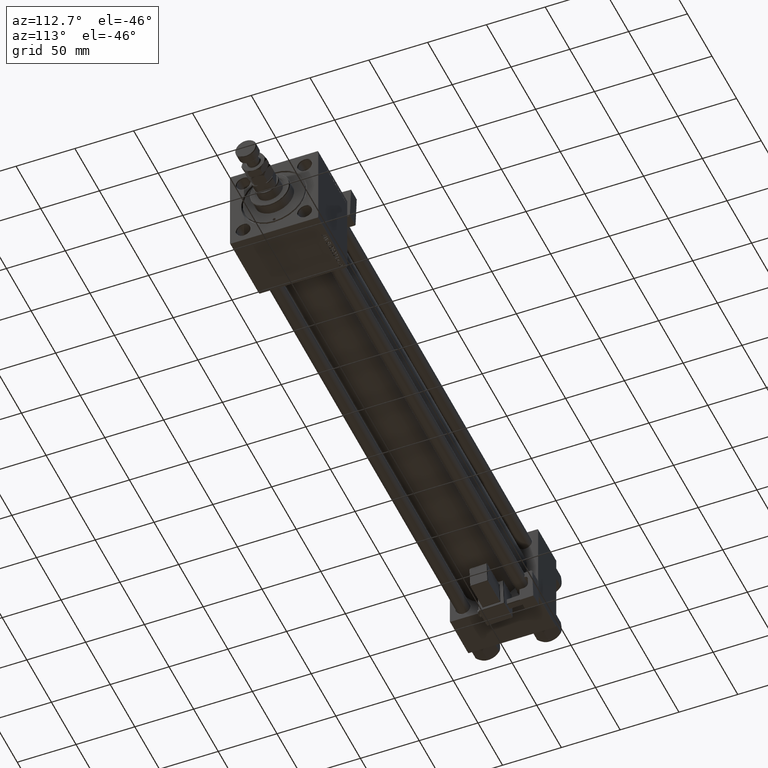
[diagram: clean part render]
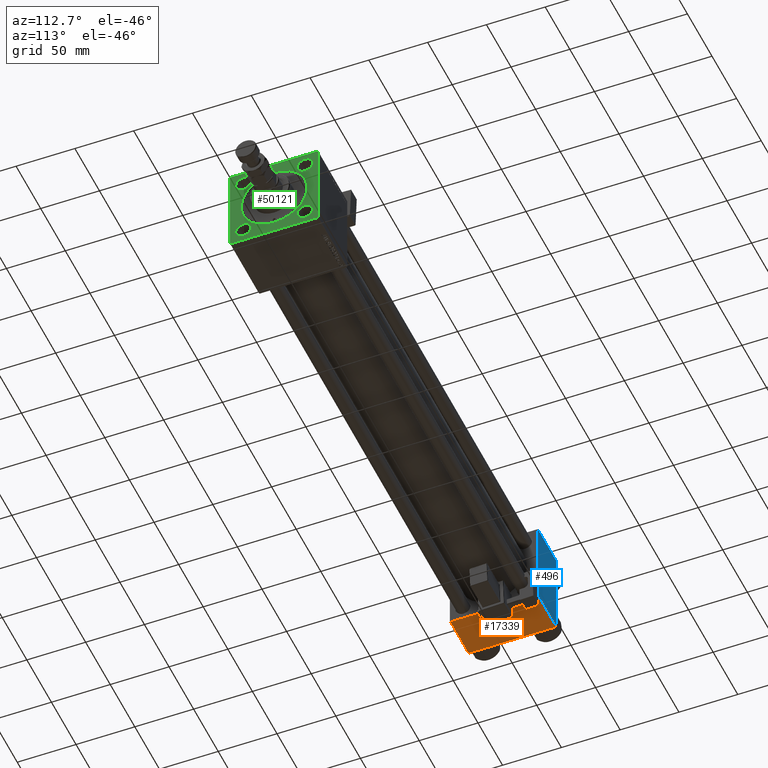
[diagram: same view with three faces highlighted in distinct colors, each labeled with its STEP entity id]
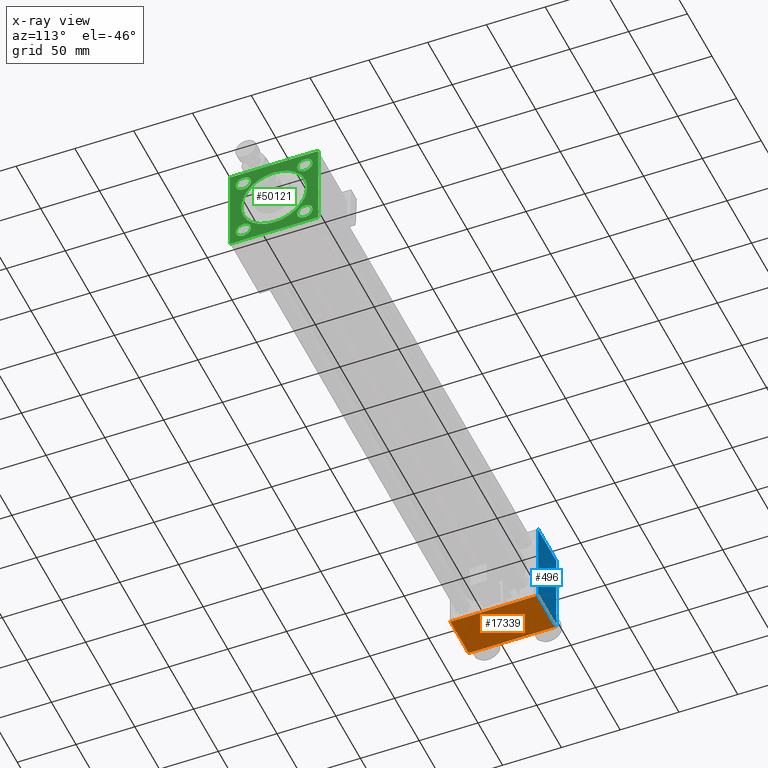
[diagram: x-ray of the same camera — body ghosted, the three highlighted faces saturated]
A machine part, auxiliary view with three faces highlighted in distinct colors.
The next image is the same camera in x-ray (body ghosted, the three faces saturated) — at least one of them is partly hidden behind the body in this view.
Their STEP definitions:

[orange] entity #17339 — the highlighted planar face has unit normal (0, 0, -1).
#242 = LINE ( 'NONE', #22148, #11803 ) ;
#1471 = AXIS2_PLACEMENT_3D ( 'NONE', #39291, #14876, #13794 ) ;
#4483 = VERTEX_POINT ( 'NONE', #25247 ) ;
#5553 = VERTEX_POINT ( 'NONE', #26611 ) ;
#11803 = VECTOR ( 'NONE', #38866, 1000.000000000000000 ) ;
#12409 = ORIENTED_EDGE ( 'NONE', *, *, #22195, .T. ) ;
#13794 = DIRECTION ( 'NONE',  ( 0.000000000000000000, 1.000000000000000000, 9.251858538542972814E-17 ) ) ;
#14311 = DIRECTION ( 'NONE',  ( 1.000000000000000000, 0.000000000000000000, 0.000000000000000000 ) ) ;
#14876 = DIRECTION ( 'NONE',  ( 0.000000000000000000, 9.251858538542972814E-17, -1.000000000000000000 ) ) ;
#14986 = EDGE_CURVE ( 'NONE', #4483, #38370, #242, .T. ) ;
#17339 = ADVANCED_FACE ( 'NONE', ( #27221 ), #51629, .T. ) ;
#20071 = CARTESIAN_POINT ( 'NONE',  ( 37.00000000000000000, -37.00000000000002132, -37.50000000000000711 ) ) ;
#22148 = CARTESIAN_POINT ( 'NONE',  ( 37.00000000000000000, 37.49999999999999289, -37.50000000000000000 ) ) ;
#22195 = EDGE_CURVE ( 'NONE', #5553, #4483, #43373, .T. ) ;
#25247 = CARTESIAN_POINT ( 'NONE',  ( 37.00000000000000000, 36.99999999999997868, -37.50000000000000000 ) ) ;
#26356 = VECTOR ( 'NONE', #14311, 1000.000000000000000 ) ;
#26611 = CARTESIAN_POINT ( 'NONE',  ( 0.000000000000000000, 36.99999999999997868, -37.50000000000000000 ) ) ;
#27221 = FACE_OUTER_BOUND ( 'NONE', #53770, .T. ) ;
#27466 = CARTESIAN_POINT ( 'NONE',  ( 37.00000000000000000, 36.99999999999997868, -37.50000000000000000 ) ) ;
#29500 = CARTESIAN_POINT ( 'NONE',  ( 0.000000000000000000, -37.00000000000002132, -37.50000000000000711 ) ) ;
#31613 = ORIENTED_EDGE ( 'NONE', *, *, #14986, .T. ) ;
#31905 = VECTOR ( 'NONE', #34287, 1000.000000000000000 ) ;
#32110 = EDGE_CURVE ( 'NONE', #5553, #46222, #33473, .T. ) ;
#33167 = ORIENTED_EDGE ( 'NONE', *, *, #35927, .T. ) ;
#33473 = LINE ( 'NONE', #50476, #31905 ) ;
#33738 = VECTOR ( 'NONE', #43103, 1000.000000000000000 ) ;
#33982 = ORIENTED_EDGE ( 'NONE', *, *, #32110, .F. ) ;
#34287 = DIRECTION ( 'NONE',  ( 0.000000000000000000, -1.000000000000000000, -9.251858538542972814E-17 ) ) ;
#35927 = EDGE_CURVE ( 'NONE', #38370, #46222, #49523, .T. ) ;
#38370 = VERTEX_POINT ( 'NONE', #20071 ) ;
#38866 = DIRECTION ( 'NONE',  ( 0.000000000000000000, -1.000000000000000000, -9.251858538542972814E-17 ) ) ;
#39291 = CARTESIAN_POINT ( 'NONE',  ( 37.00000000000000000, 37.49999999999999289, -37.50000000000000000 ) ) ;
#43103 = DIRECTION ( 'NONE',  ( -1.000000000000000000, 0.000000000000000000, 0.000000000000000000 ) ) ;
#43373 = LINE ( 'NONE', #27466, #26356 ) ;
#46222 = VERTEX_POINT ( 'NONE', #49724 ) ;
#49523 = LINE ( 'NONE', #29500, #33738 ) ;
#49724 = CARTESIAN_POINT ( 'NONE',  ( 0.000000000000000000, -37.00000000000002132, -37.50000000000000711 ) ) ;
#50476 = CARTESIAN_POINT ( 'NONE',  ( 0.000000000000000000, 37.49999999999999289, -37.50000000000000000 ) ) ;
#51629 = PLANE ( 'NONE',  #1471 ) ;
#53770 = EDGE_LOOP ( 'NONE', ( #33982, #12409, #31613, #33167 ) ) ;

[blue] entity #496 — the highlighted planar face has unit normal (0, 1, 0).
#496 = ADVANCED_FACE ( 'NONE', ( #44039 ), #6504, .T. ) ;
#1848 = CARTESIAN_POINT ( 'NONE',  ( 0.000000000000000000, 37.49999999999999289, 37.00000000000000000 ) ) ;
#2399 = DIRECTION ( 'NONE',  ( 0.000000000000000000, -0.000000000000000000, 1.000000000000000000 ) ) ;
#3756 = CARTESIAN_POINT ( 'NONE',  ( 37.00000000000000000, 37.49999999999999289, 37.00000000000000000 ) ) ;
#6262 = ORIENTED_EDGE ( 'NONE', *, *, #27633, .T. ) ;
#6504 = PLANE ( 'NONE',  #35941 ) ;
#9610 = DIRECTION ( 'NONE',  ( -1.000000000000000000, 0.000000000000000000, 0.000000000000000000 ) ) ;
#11274 = CARTESIAN_POINT ( 'NONE',  ( 37.00000000000000000, 37.49999999999999289, -36.99999999999998579 ) ) ;
#13522 = EDGE_CURVE ( 'NONE', #44966, #19688, #50749, .T. ) ;
#17569 = CARTESIAN_POINT ( 'NONE',  ( 37.00000000000000000, 37.49999999999999289, -36.99999999999998579 ) ) ;
#17621 = LINE ( 'NONE', #34356, #48331 ) ;
#19376 = DIRECTION ( 'NONE',  ( -0.000000000000000000, 1.000000000000000000, 0.000000000000000000 ) ) ;
#19688 = VERTEX_POINT ( 'NONE', #52331 ) ;
#23465 = EDGE_LOOP ( 'NONE', ( #23491, #37537, #23837, #6262 ) ) ;
#23491 = ORIENTED_EDGE ( 'NONE', *, *, #38417, .T. ) ;
#23837 = ORIENTED_EDGE ( 'NONE', *, *, #13522, .F. ) ;
#24719 = CARTESIAN_POINT ( 'NONE',  ( 37.00000000000000000, 37.49999999999999289, 37.50000000000000000 ) ) ;
#24955 = VERTEX_POINT ( 'NONE', #3756 ) ;
#27065 = CARTESIAN_POINT ( 'NONE',  ( 37.00000000000000000, 37.49999999999999289, 37.50000000000000000 ) ) ;
#27278 = VECTOR ( 'NONE', #9610, 1000.000000000000000 ) ;
#27633 = EDGE_CURVE ( 'NONE', #44966, #24955, #17621, .T. ) ;
#28824 = DIRECTION ( 'NONE',  ( 0.000000000000000000, 0.000000000000000000, -1.000000000000000000 ) ) ;
#29914 = CARTESIAN_POINT ( 'NONE',  ( 0.000000000000000000, 37.49999999999999289, 37.50000000000000000 ) ) ;
#33735 = VECTOR ( 'NONE', #45807, 1000.000000000000000 ) ;
#34356 = CARTESIAN_POINT ( 'NONE',  ( 37.00000000000000000, 37.49999999999999289, 37.00000000000000000 ) ) ;
#35941 = AXIS2_PLACEMENT_3D ( 'NONE', #27065, #19376, #2399 ) ;
#36217 = VERTEX_POINT ( 'NONE', #11274 ) ;
#37537 = ORIENTED_EDGE ( 'NONE', *, *, #47697, .T. ) ;
#38417 = EDGE_CURVE ( 'NONE', #24955, #36217, #45528, .T. ) ;
#44039 = FACE_OUTER_BOUND ( 'NONE', #23465, .T. ) ;
#44966 = VERTEX_POINT ( 'NONE', #1848 ) ;
#45528 = LINE ( 'NONE', #24719, #33735 ) ;
#45807 = DIRECTION ( 'NONE',  ( 0.000000000000000000, 0.000000000000000000, -1.000000000000000000 ) ) ;
#47435 = LINE ( 'NONE', #17569, #27278 ) ;
#47697 = EDGE_CURVE ( 'NONE', #36217, #19688, #47435, .T. ) ;
#48331 = VECTOR ( 'NONE', #51613, 1000.000000000000000 ) ;
#49435 = VECTOR ( 'NONE', #28824, 1000.000000000000000 ) ;
#50749 = LINE ( 'NONE', #29914, #49435 ) ;
#51613 = DIRECTION ( 'NONE',  ( 1.000000000000000000, 0.000000000000000000, 0.000000000000000000 ) ) ;
#52331 = CARTESIAN_POINT ( 'NONE',  ( 0.000000000000000000, 37.49999999999999289, -36.99999999999998579 ) ) ;

[green] entity #50121 — the highlighted planar face has unit normal (-1, 0, 0).
#22 = ORIENTED_EDGE ( 'NONE', *, *, #48133, .T. ) ;
#66 = VERTEX_POINT ( 'NONE', #36295 ) ;
#437 = CIRCLE ( 'NONE', #7434, 6.499999999999897859 ) ;
#1145 = EDGE_LOOP ( 'NONE', ( #40491, #21382 ) ) ;
#1366 = VECTOR ( 'NONE', #48937, 1000.000000000000000 ) ;
#1378 = LINE ( 'NONE', #35362, #42070 ) ;
#1413 = EDGE_CURVE ( 'NONE', #2666, #28731, #1378, .T. ) ;
#1474 = CARTESIAN_POINT ( 'NONE',  ( 484.0000000000000000, 37.50000000000000000, 37.49999999999999289 ) ) ;
#1579 = CARTESIAN_POINT ( 'NONE',  ( 484.0000000000000000, -37.50000000000000711, -37.00000000000000711 ) ) ;
#2027 = VERTEX_POINT ( 'NONE', #52970 ) ;
#2166 = CARTESIAN_POINT ( 'NONE',  ( 484.0000000000000000, -37.00000000000000000, 37.49999999999997868 ) ) ;
#2520 = CARTESIAN_POINT ( 'NONE',  ( 484.0000000000000000, -26.14999999999999147, 26.14999999999999503 ) ) ;
#2666 = VERTEX_POINT ( 'NONE', #25947 ) ;
#2778 = DIRECTION ( 'NONE',  ( 0.000000000000000000, 0.000000000000000000, 1.000000000000000000 ) ) ;
#3132 = EDGE_CURVE ( 'NONE', #25585, #11915, #18591, .T. ) ;
#3170 = LINE ( 'NONE', #12165, #1366 ) ;
#3567 = EDGE_LOOP ( 'NONE', ( #46979, #36105 ) ) ;
#3654 = VECTOR ( 'NONE', #52046, 1000.000000000000000 ) ;
#4266 = ORIENTED_EDGE ( 'NONE', *, *, #34398, .T. ) ;
#4374 = VERTEX_POINT ( 'NONE', #18163 ) ;
#4654 = VERTEX_POINT ( 'NONE', #7097 ) ;
#4855 = ORIENTED_EDGE ( 'NONE', *, *, #39265, .T. ) ;
#4941 = CIRCLE ( 'NONE', #9317, 28.00000000000002487 ) ;
#4992 = DIRECTION ( 'NONE',  ( 0.000000000000000000, 0.000000000000000000, 1.000000000000000000 ) ) ;
#5115 = DIRECTION ( 'NONE',  ( 0.000000000000000000, 0.000000000000000000, 1.000000000000000000 ) ) ;
#5543 = DIRECTION ( 'NONE',  ( -1.000000000000000000, -0.000000000000000000, 0.000000000000000000 ) ) ;
#6290 = EDGE_CURVE ( 'NONE', #27440, #4374, #23035, .T. ) ;
#6563 = EDGE_LOOP ( 'NONE', ( #20649, #29598 ) ) ;
#6754 = CARTESIAN_POINT ( 'NONE',  ( 484.0000000000000000, 37.00000000000000000, -37.50000000000000000 ) ) ;
#7097 = CARTESIAN_POINT ( 'NONE',  ( 484.0000000000000000, 26.14999999999999858, -19.65000000000010871 ) ) ;
#7282 = ORIENTED_EDGE ( 'NONE', *, *, #37352, .F. ) ;
#7434 = AXIS2_PLACEMENT_3D ( 'NONE', #45571, #7776, #16266 ) ;
#7609 = DIRECTION ( 'NONE',  ( -1.000000000000000000, -0.000000000000000000, 0.000000000000000000 ) ) ;
#7633 = AXIS2_PLACEMENT_3D ( 'NONE', #46185, #8636, #25363 ) ;
#7776 = DIRECTION ( 'NONE',  ( -1.000000000000000000, -0.000000000000000000, 0.000000000000000000 ) ) ;
#8186 = CIRCLE ( 'NONE', #45828, 6.499999999999897859 ) ;
#8413 = ORIENTED_EDGE ( 'NONE', *, *, #46291, .F. ) ;
#8490 = FACE_BOUND ( 'NONE', #1145, .T. ) ;
#8579 = CARTESIAN_POINT ( 'NONE',  ( 484.0000000000000000, -26.15000000000000213, -19.65000000000010871 ) ) ;
#8636 = DIRECTION ( 'NONE',  ( -1.000000000000000000, -0.000000000000000000, 0.000000000000000000 ) ) ;
#9098 = VERTEX_POINT ( 'NONE', #2166 ) ;
#9166 = AXIS2_PLACEMENT_3D ( 'NONE', #42250, #26627, #4992 ) ;
#9185 = EDGE_CURVE ( 'NONE', #2027, #20235, #14246, .T. ) ;
#9317 = AXIS2_PLACEMENT_3D ( 'NONE', #12156, #16823, #49468 ) ;
#9814 = CIRCLE ( 'NONE', #41314, 6.499999999999897859 ) ;
#9913 = CARTESIAN_POINT ( 'NONE',  ( 484.0000000000000000, 26.14999999999999858, -26.15000000000000213 ) ) ;
#9933 = LINE ( 'NONE', #38726, #15303 ) ;
#10163 = VERTEX_POINT ( 'NONE', #36354 ) ;
#10585 = EDGE_CURVE ( 'NONE', #4654, #38412, #8186, .T. ) ;
#11516 = VERTEX_POINT ( 'NONE', #24617 ) ;
#11915 = VERTEX_POINT ( 'NONE', #1579 ) ;
#12150 = ORIENTED_EDGE ( 'NONE', *, *, #54206, .T. ) ;
#12156 = CARTESIAN_POINT ( 'NONE',  ( 484.0000000000000000, 0.000000000000000000, 0.000000000000000000 ) ) ;
#12165 = CARTESIAN_POINT ( 'NONE',  ( 484.0000000000000000, -37.50000000000000000, 36.99999999999992184 ) ) ;
#12500 = AXIS2_PLACEMENT_3D ( 'NONE', #12861, #46575, #42992 ) ;
#12584 = FACE_BOUND ( 'NONE', #3567, .T. ) ;
#12861 = CARTESIAN_POINT ( 'NONE',  ( 484.0000000000000000, 0.000000000000000000, 0.000000000000000000 ) ) ;
#13053 = ORIENTED_EDGE ( 'NONE', *, *, #3132, .T. ) ;
#14246 = CIRCLE ( 'NONE', #30030, 6.499999999999897859 ) ;
#14791 = EDGE_CURVE ( 'NONE', #50770, #66, #50268, .T. ) ;
#15303 = VECTOR ( 'NONE', #17899, 1000.000000000000000 ) ;
#15729 = LINE ( 'NONE', #32454, #26176 ) ;
#15920 = EDGE_CURVE ( 'NONE', #28731, #9098, #22830, .T. ) ;
#16162 = CIRCLE ( 'NONE', #9166, 6.499999999999897859 ) ;
#16182 = FACE_BOUND ( 'NONE', #46545, .T. ) ;
#16266 = DIRECTION ( 'NONE',  ( 0.000000000000000000, 0.000000000000000000, 1.000000000000000000 ) ) ;
#16471 = ORIENTED_EDGE ( 'NONE', *, *, #14791, .T. ) ;
#16823 = DIRECTION ( 'NONE',  ( -1.000000000000000000, -0.000000000000000000, 0.000000000000000000 ) ) ;
#17899 = DIRECTION ( 'NONE',  ( 0.000000000000000000, 0.000000000000000000, -1.000000000000000000 ) ) ;
#18148 = DIRECTION ( 'NONE',  ( 0.000000000000000000, 0.000000000000000000, 1.000000000000000000 ) ) ;
#18163 = CARTESIAN_POINT ( 'NONE',  ( 484.0000000000000000, -26.14999999999999147, 19.65000000000010516 ) ) ;
#18591 = LINE ( 'NONE', #44071, #3654 ) ;
#19895 = CIRCLE ( 'NONE', #7633, 28.00000000000002487 ) ;
#20235 = VERTEX_POINT ( 'NONE', #33311 ) ;
#20649 = ORIENTED_EDGE ( 'NONE', *, *, #40978, .T. ) ;
#20677 = DIRECTION ( 'NONE',  ( -0.000000000000000000, 0.7071067811865033859, 0.7071067811865916486 ) ) ;
#21382 = ORIENTED_EDGE ( 'NONE', *, *, #40697, .T. ) ;
#22060 = CARTESIAN_POINT ( 'NONE',  ( 484.0000000000000000, -37.50000000000000000, 36.99999999999992184 ) ) ;
#22830 = LINE ( 'NONE', #1474, #39887 ) ;
#23035 = CIRCLE ( 'NONE', #36175, 6.499999999999891642 ) ;
#24328 = CARTESIAN_POINT ( 'NONE',  ( 484.0000000000000000, 26.14999999999999858, 26.15000000000000213 ) ) ;
#24617 = CARTESIAN_POINT ( 'NONE',  ( 484.0000000000000000, 3.429011037612592037E-15, 28.00000000000002487 ) ) ;
#24838 = ORIENTED_EDGE ( 'NONE', *, *, #1413, .T. ) ;
#24969 = AXIS2_PLACEMENT_3D ( 'NONE', #2520, #32377, #2778 ) ;
#25221 = FACE_OUTER_BOUND ( 'NONE', #47229, .T. ) ;
#25363 = DIRECTION ( 'NONE',  ( 0.000000000000000000, 0.000000000000000000, 1.000000000000000000 ) ) ;
#25585 = VERTEX_POINT ( 'NONE', #22060 ) ;
#25947 = CARTESIAN_POINT ( 'NONE',  ( 484.0000000000000000, 37.50000000000000000, 36.99999999999999289 ) ) ;
#26176 = VECTOR ( 'NONE', #49174, 1000.000000000000000 ) ;
#26627 = DIRECTION ( 'NONE',  ( -1.000000000000000000, -0.000000000000000000, 0.000000000000000000 ) ) ;
#27289 = EDGE_LOOP ( 'NONE', ( #12150, #43110 ) ) ;
#27440 = VERTEX_POINT ( 'NONE', #44512 ) ;
#28604 = AXIS2_PLACEMENT_3D ( 'NONE', #47508, #46973, #42847 ) ;
#28723 = CARTESIAN_POINT ( 'NONE',  ( 484.0000000000000000, 26.14999999999999858, 26.15000000000000213 ) ) ;
#28731 = VERTEX_POINT ( 'NONE', #51304 ) ;
#29333 = FACE_BOUND ( 'NONE', #27289, .T. ) ;
#29598 = ORIENTED_EDGE ( 'NONE', *, *, #10585, .T. ) ;
#29688 = LINE ( 'NONE', #49963, #39849 ) ;
#30030 = AXIS2_PLACEMENT_3D ( 'NONE', #28723, #32840, #45425 ) ;
#32131 = CIRCLE ( 'NONE', #28604, 6.499999999999897859 ) ;
#32377 = DIRECTION ( 'NONE',  ( -1.000000000000000000, -0.000000000000000000, 0.000000000000000000 ) ) ;
#32454 = CARTESIAN_POINT ( 'NONE',  ( 484.0000000000000000, 37.50000000000000000, -37.50000000000000000 ) ) ;
#32754 = VERTEX_POINT ( 'NONE', #39617 ) ;
#32840 = DIRECTION ( 'NONE',  ( -1.000000000000000000, -0.000000000000000000, 0.000000000000000000 ) ) ;
#33311 = CARTESIAN_POINT ( 'NONE',  ( 484.0000000000000000, 26.14999999999999858, 19.65000000000010516 ) ) ;
#34398 = EDGE_CURVE ( 'NONE', #11915, #40376, #29688, .T. ) ;
#34592 = EDGE_CURVE ( 'NONE', #4374, #27440, #48609, .T. ) ;
#35063 = EDGE_CURVE ( 'NONE', #44084, #32754, #437, .T. ) ;
#35362 = CARTESIAN_POINT ( 'NONE',  ( 484.0000000000000000, 36.99999999999994316, 37.49999999999999289 ) ) ;
#36105 = ORIENTED_EDGE ( 'NONE', *, *, #6290, .T. ) ;
#36175 = AXIS2_PLACEMENT_3D ( 'NONE', #46490, #42384, #5115 ) ;
#36295 = CARTESIAN_POINT ( 'NONE',  ( 484.0000000000000000, 37.50000000000000000, -36.99999999999993605 ) ) ;
#36354 = CARTESIAN_POINT ( 'NONE',  ( 484.0000000000000000, 0.000000000000000000, -28.00000000000002487 ) ) ;
#36528 = DIRECTION ( 'NONE',  ( 0.000000000000000000, -1.000000000000000000, -1.850371707708594316E-16 ) ) ;
#37352 = EDGE_CURVE ( 'NONE', #2666, #66, #9933, .T. ) ;
#38412 = VERTEX_POINT ( 'NONE', #45271 ) ;
#38726 = CARTESIAN_POINT ( 'NONE',  ( 484.0000000000000000, 37.50000000000000000, 37.49999999999999289 ) ) ;
#39265 = EDGE_CURVE ( 'NONE', #9098, #25585, #3170, .T. ) ;
#39480 = CARTESIAN_POINT ( 'NONE',  ( 484.0000000000000000, -36.99999999999995737, -37.50000000000000000 ) ) ;
#39617 = CARTESIAN_POINT ( 'NONE',  ( 484.0000000000000000, -26.15000000000000213, -32.64999999999989910 ) ) ;
#39849 = VECTOR ( 'NONE', #45842, 1000.000000000000000 ) ;
#39887 = VECTOR ( 'NONE', #36528, 1000.000000000000000 ) ;
#40376 = VERTEX_POINT ( 'NONE', #39480 ) ;
#40491 = ORIENTED_EDGE ( 'NONE', *, *, #42881, .T. ) ;
#40697 = EDGE_CURVE ( 'NONE', #11516, #10163, #4941, .T. ) ;
#40978 = EDGE_CURVE ( 'NONE', #38412, #4654, #32131, .T. ) ;
#41314 = AXIS2_PLACEMENT_3D ( 'NONE', #24328, #7609, #44868 ) ;
#42024 = CARTESIAN_POINT ( 'NONE',  ( 484.0000000000000000, 37.50000000000000000, -36.99999999999993605 ) ) ;
#42070 = VECTOR ( 'NONE', #52086, 1000.000000000000000 ) ;
#42250 = CARTESIAN_POINT ( 'NONE',  ( 484.0000000000000000, -26.15000000000000213, -26.15000000000000213 ) ) ;
#42384 = DIRECTION ( 'NONE',  ( -1.000000000000000000, -0.000000000000000000, 0.000000000000000000 ) ) ;
#42847 = DIRECTION ( 'NONE',  ( 0.000000000000000000, 0.000000000000000000, 1.000000000000000000 ) ) ;
#42881 = EDGE_CURVE ( 'NONE', #10163, #11516, #19895, .T. ) ;
#42992 = DIRECTION ( 'NONE',  ( 0.000000000000000000, 0.000000000000000000, 1.000000000000000000 ) ) ;
#43110 = ORIENTED_EDGE ( 'NONE', *, *, #35063, .T. ) ;
#44071 = CARTESIAN_POINT ( 'NONE',  ( 484.0000000000000000, -37.50000000000000000, 37.49999999999997868 ) ) ;
#44084 = VERTEX_POINT ( 'NONE', #8579 ) ;
#44512 = CARTESIAN_POINT ( 'NONE',  ( 484.0000000000000000, -26.14999999999999147, 32.64999999999988489 ) ) ;
#44868 = DIRECTION ( 'NONE',  ( 0.000000000000000000, 0.000000000000000000, 1.000000000000000000 ) ) ;
#45271 = CARTESIAN_POINT ( 'NONE',  ( 484.0000000000000000, 26.14999999999999858, -32.64999999999989910 ) ) ;
#45425 = DIRECTION ( 'NONE',  ( 0.000000000000000000, 0.000000000000000000, 1.000000000000000000 ) ) ;
#45571 = CARTESIAN_POINT ( 'NONE',  ( 484.0000000000000000, -26.15000000000000213, -26.15000000000000213 ) ) ;
#45828 = AXIS2_PLACEMENT_3D ( 'NONE', #9913, #5543, #18148 ) ;
#45842 = DIRECTION ( 'NONE',  ( 0.000000000000000000, 0.7071067811865867636, -0.7071067811865081598 ) ) ;
#46039 = FACE_BOUND ( 'NONE', #6563, .T. ) ;
#46185 = CARTESIAN_POINT ( 'NONE',  ( 484.0000000000000000, 0.000000000000000000, 0.000000000000000000 ) ) ;
#46291 = EDGE_CURVE ( 'NONE', #50770, #40376, #15729, .T. ) ;
#46490 = CARTESIAN_POINT ( 'NONE',  ( 484.0000000000000000, -26.14999999999999147, 26.14999999999999503 ) ) ;
#46545 = EDGE_LOOP ( 'NONE', ( #22, #51432 ) ) ;
#46575 = DIRECTION ( 'NONE',  ( -1.000000000000000000, -0.000000000000000000, 0.000000000000000000 ) ) ;
#46855 = VECTOR ( 'NONE', #20677, 1000.000000000000000 ) ;
#46973 = DIRECTION ( 'NONE',  ( -1.000000000000000000, -0.000000000000000000, 0.000000000000000000 ) ) ;
#46979 = ORIENTED_EDGE ( 'NONE', *, *, #34592, .T. ) ;
#47229 = EDGE_LOOP ( 'NONE', ( #13053, #4266, #8413, #16471, #7282, #24838, #54180, #4855 ) ) ;
#47508 = CARTESIAN_POINT ( 'NONE',  ( 484.0000000000000000, 26.14999999999999858, -26.15000000000000213 ) ) ;
#48133 = EDGE_CURVE ( 'NONE', #20235, #2027, #9814, .T. ) ;
#48609 = CIRCLE ( 'NONE', #24969, 6.499999999999891642 ) ;
#48937 = DIRECTION ( 'NONE',  ( -0.000000000000000000, -0.7071067811865081598, -0.7071067811865867636 ) ) ;
#49174 = DIRECTION ( 'NONE',  ( 0.000000000000000000, -1.000000000000000000, 0.000000000000000000 ) ) ;
#49468 = DIRECTION ( 'NONE',  ( 0.000000000000000000, 0.000000000000000000, 1.000000000000000000 ) ) ;
#49963 = CARTESIAN_POINT ( 'NONE',  ( 484.0000000000000000, -36.99999999999995737, -37.50000000000000000 ) ) ;
#50121 = ADVANCED_FACE ( 'NONE', ( #16182, #12584, #29333, #46039, #8490, #25221 ), #50441, .F. ) ;
#50268 = LINE ( 'NONE', #42024, #46855 ) ;
#50441 = PLANE ( 'NONE',  #12500 ) ;
#50770 = VERTEX_POINT ( 'NONE', #6754 ) ;
#51304 = CARTESIAN_POINT ( 'NONE',  ( 484.0000000000000000, 36.99999999999994316, 37.49999999999999289 ) ) ;
#51432 = ORIENTED_EDGE ( 'NONE', *, *, #9185, .T. ) ;
#52046 = DIRECTION ( 'NONE',  ( 0.000000000000000000, -9.251858538542972814E-17, -1.000000000000000000 ) ) ;
#52086 = DIRECTION ( 'NONE',  ( 0.000000000000000000, -0.7071067811865867636, 0.7071067811865081598 ) ) ;
#52970 = CARTESIAN_POINT ( 'NONE',  ( 484.0000000000000000, 26.14999999999999858, 32.64999999999989910 ) ) ;
#54180 = ORIENTED_EDGE ( 'NONE', *, *, #15920, .T. ) ;
#54206 = EDGE_CURVE ( 'NONE', #32754, #44084, #16162, .T. ) ;